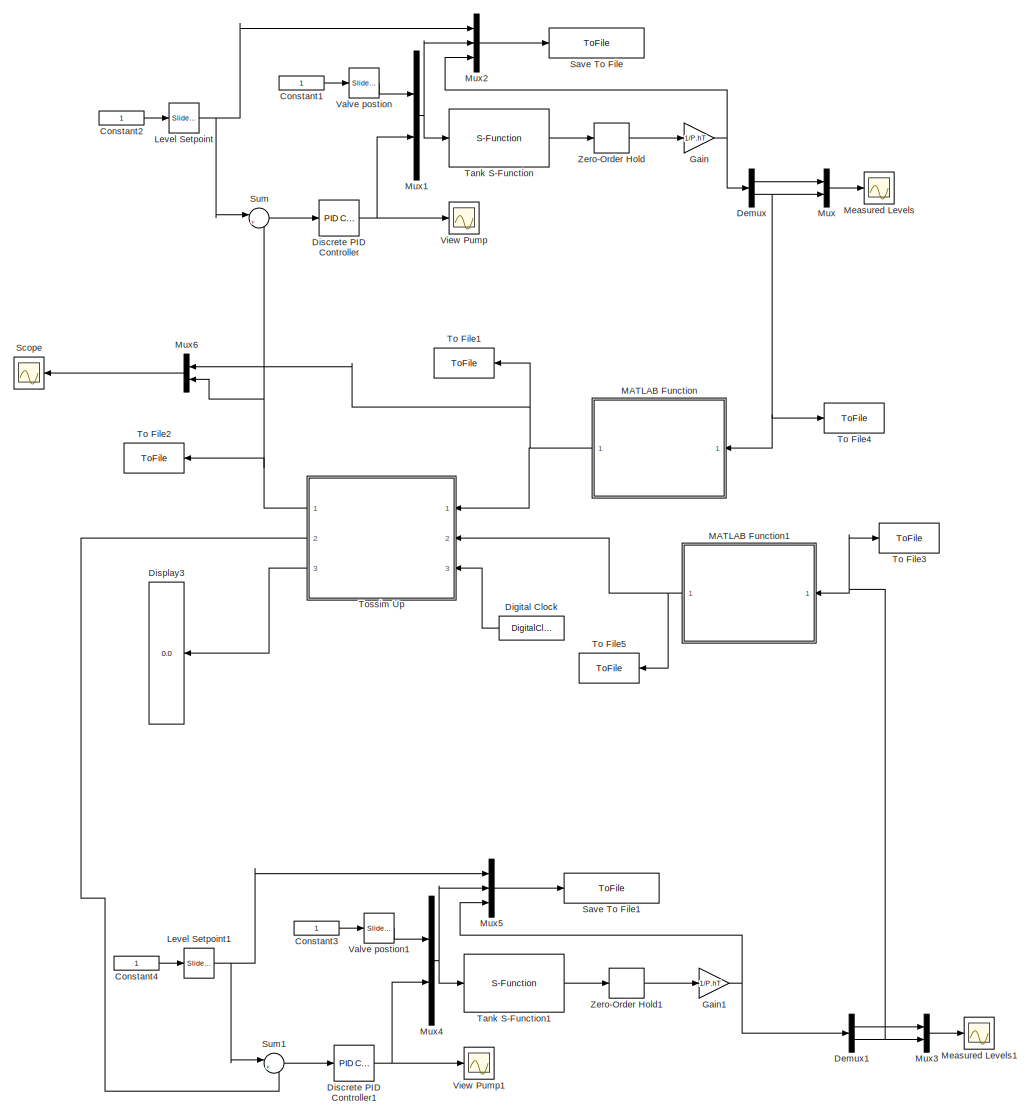
[diagram: root canvas - part 1/3, center side, full height]
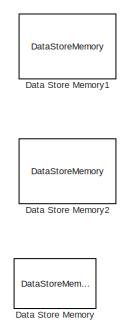
[diagram: root canvas - part 2/3, middle right region]
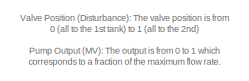
[diagram: root canvas - part 3/3, bottom left region]
MODEL slx_25f17d9f1249
KIND model
CONFIG AbsTol = auto
CONFIG EnableMultiTasking = on
CONFIG FixedStep = auto
CONFIG MaxStep = auto
CONFIG MinStep = auto
CONFIG PreLoadFcn = Initialize
CONFIG RelTol = 1e-3
CONFIG SampleTimeConstraint = Unconstrained
CONFIG Solver = ode45
CONFIG SolverName = ode45
CONFIG StartTime = 0.0
CONFIG StopFcn = Plot_and_save
CONFIG StopTime = 10000
BLOCK [Constant] Constant1
BLOCK [Constant] Constant2
BLOCK [Constant] Constant3
BLOCK [Constant] Constant4
BLOCK [DataStoreMemory] Data Store Memory
  DataStoreName = ydelay_global
  InitialValue = [1; 1; 1; 1; 1; 1; 1; 1; 1; 1; 1; 1; 1; 1; 1]
  OutDataTypeStr = uint32
  ReadBeforeWriteMsg = warning
  ShowAdditionalParam = off
  SignalType = real
  WriteAfterReadMsg = warning
  WriteAfterWriteMsg = warning
BLOCK [DataStoreMemory] Data Store Memory1
  DataStoreName = threshold1
  InitialValue = th1_initial
  OutDataTypeStr = double
  ReadBeforeWriteMsg = warning
  ShowAdditionalParam = off
  SignalType = real
  WriteAfterReadMsg = warning
  WriteAfterWriteMsg = warning
BLOCK [DataStoreMemory] Data Store Memory2
  DataStoreName = threshold2
  InitialValue = th2_initial
  OutDataTypeStr = double
  ReadBeforeWriteMsg = warning
  ShowAdditionalParam = off
  SignalType = real
  WriteAfterReadMsg = warning
  WriteAfterWriteMsg = warning
BLOCK [Demux] Demux
  DisplayOption = bar
  Outputs = 2
  Ports = [1, 2]
BLOCK [Demux] Demux1
  DisplayOption = bar
  Outputs = 2
  Ports = [1, 2]
BLOCK [DigitalClock] Digital Clock
  SampleTime = delta_t
BLOCK [Reference] Discrete PID Controller  REF=simulink/Continuous/PID Controller
  Ports = [1, 1]
  SourceBlock = simulink/Continuous/PID Controller
  SourceProductBaseCode = SL
  SourceProductName = Simulink
  SourceType = PID 1dof
BLOCK [Reference] Discrete PID Controller1  REF=simulink/Continuous/PID Controller
  Ports = [1, 1]
  SourceBlock = simulink/Continuous/PID Controller
  SourceProductBaseCode = SL
  SourceProductName = Simulink
  SourceType = PID 1dof
BLOCK [Display] Display3
  Decimation = 1
  Ports = [1]
BLOCK [Gain] Gain
  Gain = 1/P.hT
  OutDataTypeStr = Inherit: Inherit via internal rule
  ParamDataTypeStr = Inherit: Inherit via internal rule
  SaturateOnIntegerOverflow = off
BLOCK [Gain] Gain1
  Gain = 1/P.hT
  OutDataTypeStr = Inherit: Inherit via internal rule
  ParamDataTypeStr = Inherit: Inherit via internal rule
  SaturateOnIntegerOverflow = off
BLOCK [Reference] Level Setpoint  REF=simulink/Math
Operations/Slider
Gain
  Ports = [1, 1]
  SourceBlock = simulink/Math\nOperations/Slider\nGain
  SourceProductBaseCode = SL
  SourceProductName = Simulink
  SourceType = Slider Gain
BLOCK [Reference] Level Setpoint1  REF=simulink/Math
Operations/Slider
Gain
  Ports = [1, 1]
  SourceBlock = simulink/Math\nOperations/Slider\nGain
  SourceProductBaseCode = SL
  SourceProductName = Simulink
  SourceType = Slider Gain
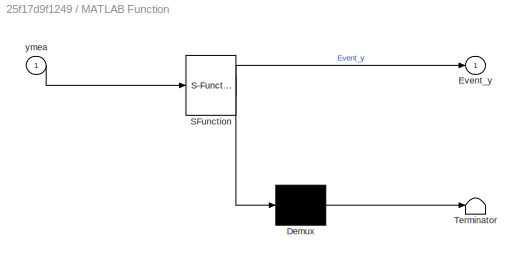
BLOCK [SubSystem] MATLAB Function
  ErrorFcn = Stateflow.Translate.translate
  PermitHierarchicalResolution = ExplicitOnly
  Ports = [1, 1]
  RequestExecContextInheritance = off
  SFBlockType = MATLAB Function
  TreatAsAtomicUnit = on
BLOCK [Demux] MATLAB Function/ Demux 
  Outputs = 1
  Ports = [1, 1]
BLOCK [S-Function] MATLAB Function/ SFunction 
  EnableBusSupport = on
  FunctionName = sf_sfun
  PortCounts = [1 2]
  Ports = [1, 2]
  SFcnIsStateOwnerBlock = off
  SFunctionDeploymentMode = off
  Tag = Stateflow S-Function Gravity_Drained_Tanks_Test_WCPSv3 2
BLOCK [Terminator] MATLAB Function/ Terminator 
BLOCK [Outport] MATLAB Function/Event_y
  IconDisplay = Port number
BLOCK [Inport] MATLAB Function/ymea
  IconDisplay = Port number
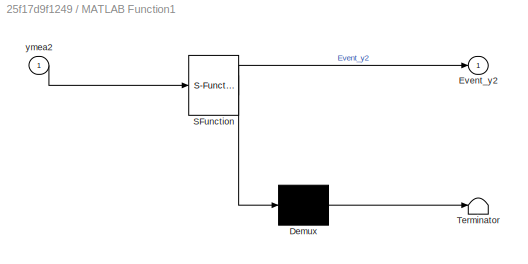
BLOCK [SubSystem] MATLAB Function1
  ErrorFcn = Stateflow.Translate.translate
  PermitHierarchicalResolution = ExplicitOnly
  Ports = [1, 1]
  RequestExecContextInheritance = off
  SFBlockType = MATLAB Function
  TreatAsAtomicUnit = on
BLOCK [Demux] MATLAB Function1/ Demux 
  Outputs = 1
  Ports = [1, 1]
BLOCK [S-Function] MATLAB Function1/ SFunction 
  EnableBusSupport = on
  FunctionName = sf_sfun
  PortCounts = [1 2]
  Ports = [1, 2]
  SFcnIsStateOwnerBlock = off
  SFunctionDeploymentMode = off
  Tag = Stateflow S-Function Gravity_Drained_Tanks_Test_WCPSv3 3
BLOCK [Terminator] MATLAB Function1/ Terminator 
BLOCK [Outport] MATLAB Function1/Event_y2
  IconDisplay = Port number
BLOCK [Inport] MATLAB Function1/ymea2
  IconDisplay = Port number
BLOCK [Scope] Measured Levels
  Floating = off
  NumInputPorts = 1
  Ports = [1]
  ScopeSpecificationString = Simulink.scopes.TimeScopeBlockCfg('CurrentConfiguration', extmgr.ConfigurationSet(extmgr.Configuration('Core','General UI',true),extmgr.Configuration('Core','Source UI',true),extmgr.Configuration('Sources','WiredSimulink',true,'DataLoggingVariableName','ScopeData1','DataLoggingSaveFormat','StructureWithTime','DataLoggingLimitDataPoints',true,'DataLoggingDecimation','1','DataLoggingDecimateData',tr...<+1760ch>
BLOCK [Scope] Measured Levels1
  Floating = off
  NumInputPorts = 1
  Ports = [1]
  ScopeSpecificationString = Simulink.scopes.TimeScopeBlockCfg('CurrentConfiguration', extmgr.ConfigurationSet(extmgr.Configuration('Core','General UI',true),extmgr.Configuration('Core','Source UI',true),extmgr.Configuration('Sources','WiredSimulink',true,'DataLoggingVariableName','ScopeData1','DataLoggingSaveFormat','StructureWithTime','DataLoggingLimitDataPoints',true,'DataLoggingDecimation','1','DataLoggingDecimateData',tr...<+1759ch>
BLOCK [Mux] Mux
  DisplayOption = bar
  Inputs = 2
  Ports = [2, 1]
BLOCK [Mux] Mux1
  DisplayOption = bar
  Inputs = 2
  Ports = [2, 1]
BLOCK [Mux] Mux2
  DisplayOption = bar
  Inputs = 3
  Ports = [3, 1]
BLOCK [Mux] Mux3
  DisplayOption = bar
  Inputs = 2
  Ports = [2, 1]
BLOCK [Mux] Mux4
  DisplayOption = bar
  Inputs = 2
  Ports = [2, 1]
BLOCK [Mux] Mux5
  DisplayOption = bar
  Inputs = 3
  Ports = [3, 1]
BLOCK [Mux] Mux6
  DisplayOption = bar
  Inputs = 2
  Ports = [2, 1]
BLOCK [ToFile] Save To File
  Filename = data_manual.mat
  MatrixName = tanks
  Ports = [1]
  SampleTime = 1
BLOCK [ToFile] Save To File1
  Filename = data_manual2.mat
  MatrixName = tanks2
  Ports = [1]
  SampleTime = 1
BLOCK [Scope] Scope
  Floating = off
  NumInputPorts = 1
  Ports = [1]
  ScopeSpecificationString = Simulink.scopes.TimeScopeBlockCfg('CurrentConfiguration', extmgr.ConfigurationSet(extmgr.Configuration('Core','General UI',true),extmgr.Configuration('Core','Source UI',true),extmgr.Configuration('Sources','WiredSimulink',true,'DataLoggingVariableName','ScopeData1'),extmgr.Configuration('Visuals','Time Domain',true,'SerializedDisplays',{struct('MinYLimReal','-0.12026','MaxYLimReal','1.08235','YLab...<+1447ch>
BLOCK [Sum] Sum
  IconShape = round
  InputSameDT = off
  Inputs = |+-
  OutDataTypeStr = Inherit: Inherit via internal rule
  Ports = [2, 1]
  SaturateOnIntegerOverflow = off
BLOCK [Sum] Sum1
  IconShape = round
  InputSameDT = off
  Inputs = |+-
  OutDataTypeStr = Inherit: Inherit via internal rule
  Ports = [2, 1]
  SaturateOnIntegerOverflow = off
BLOCK [S-Function] Tank S-Function
  EnableBusSupport = off
  FunctionName = tank_dynamics
  Parameters = P
  Ports = [1, 1]
  SFcnIsStateOwnerBlock = off
  SFunctionDeploymentMode = off
BLOCK [S-Function] Tank S-Function1
  EnableBusSupport = off
  FunctionName = tank_dynamics_v2
  Parameters = P2
  Ports = [1, 1]
  SFcnIsStateOwnerBlock = off
  SFunctionDeploymentMode = off
BLOCK [ToFile] To File1
  Filename = Event_ymea1
  MatrixName = Event_ymea1
  Ports = [1]
  SampleTime = 1
BLOCK [ToFile] To File2
  Filename = ymea1
  MatrixName = ymea1
  Ports = [1]
  SampleTime = 1
BLOCK [ToFile] To File3
  Filename = ymea2
  MatrixName = ymea2
  Ports = [1]
  SampleTime = 1
BLOCK [ToFile] To File4
  Filename = ymea
  MatrixName = ymea
  Ports = [1]
  SampleTime = 1
BLOCK [ToFile] To File5
  Filename = Event_ymea2
  MatrixName = Event_ymea2
  Ports = [1]
  SampleTime = 1
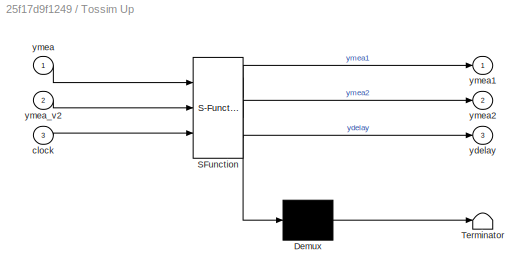
BLOCK [SubSystem] Tossim Up
  ErrorFcn = Stateflow.Translate.translate
  PermitHierarchicalResolution = ExplicitOnly
  Ports = [3, 3]
  RequestExecContextInheritance = off
  SFBlockType = MATLAB Function
  TreatAsAtomicUnit = on
BLOCK [Demux] Tossim Up/ Demux 
  Outputs = 1
  Ports = [1, 1]
BLOCK [S-Function] Tossim Up/ SFunction 
  EnableBusSupport = on
  FunctionName = sf_sfun
  PortCounts = [3 4]
  Ports = [3, 4]
  SFcnIsStateOwnerBlock = off
  SFunctionDeploymentMode = off
  Tag = Stateflow S-Function Gravity_Drained_Tanks_Test_WCPSv3 1
BLOCK [Terminator] Tossim Up/ Terminator 
BLOCK [Inport] Tossim Up/clock
  IconDisplay = Port number
  Port = 3
BLOCK [Outport] Tossim Up/ydelay
  IconDisplay = Port number
  Port = 3
BLOCK [Inport] Tossim Up/ymea
  IconDisplay = Port number
BLOCK [Outport] Tossim Up/ymea1
  IconDisplay = Port number
BLOCK [Outport] Tossim Up/ymea2
  IconDisplay = Port number
  Port = 2
BLOCK [Inport] Tossim Up/ymea_v2
  IconDisplay = Port number
  Port = 2
BLOCK [Reference] Valve postion  REF=simulink/Math
Operations/Slider
Gain
  Ports = [1, 1]
  SourceBlock = simulink/Math\nOperations/Slider\nGain
  SourceProductBaseCode = SL
  SourceProductName = Simulink
  SourceType = Slider Gain
BLOCK [Reference] Valve postion1  REF=simulink/Math
Operations/Slider
Gain
  Ports = [1, 1]
  SourceBlock = simulink/Math\nOperations/Slider\nGain
  SourceProductBaseCode = SL
  SourceProductName = Simulink
  SourceType = Slider Gain
BLOCK [Scope] View Pump
  Floating = off
  NumInputPorts = 1
  Ports = [1]
  ScopeSpecificationString = Simulink.scopes.TimeScopeBlockCfg('CurrentConfiguration', extmgr.ConfigurationSet(extmgr.Configuration('Core','General UI',true),extmgr.Configuration('Core','Source UI',true),extmgr.Configuration('Sources','WiredSimulink',true,'DataLoggingSaveFormat','StructureWithTime','DataLoggingLimitDataPoints',true,'DataLoggingDecimation','1','DataLoggingDecimateData',true),extmgr.Configuration('Visuals','Tim...<+1672ch>
BLOCK [Scope] View Pump1
  Floating = off
  NumInputPorts = 1
  Ports = [1]
  ScopeSpecificationString = Simulink.scopes.TimeScopeBlockCfg('CurrentConfiguration', extmgr.ConfigurationSet(extmgr.Configuration('Core','General UI',true),extmgr.Configuration('Core','Source UI',true),extmgr.Configuration('Sources','WiredSimulink',true,'DataLoggingSaveFormat','StructureWithTime','DataLoggingLimitDataPoints',true,'DataLoggingDecimation','1','DataLoggingDecimateData',true,'DataLoggingVariableName','ScopeData...<+1711ch>
BLOCK [ZeroOrderHold] Zero-Order Hold
  SampleTime = delta_t
BLOCK [ZeroOrderHold] Zero-Order Hold1
  SampleTime = delta_t
ANNOTATION (root): Valve Position (Disturbance): The valve position is from 0 (all to the 1st tank) to 1 (all to the 2nd) Pump Output (MV): The output is from 0 to 1 which corresponds to a fraction of the maximum flow rate. Change blue box values (slider).
LINE Constant1:1 -> Valve postion:1
LINE Constant2:1 -> Level Setpoint:1
LINE Constant3:1 -> Valve postion1:1
LINE Constant4:1 -> Level Setpoint1:1
LINE Demux1:1 -> Mux3:1
NET Demux1:2 -> MATLAB Function1:1, Mux3:2, To File3:1
LINE Demux:1 -> Mux:1
NET Demux:2 -> MATLAB Function:1, Mux:2, To File4:1
LINE Digital Clock:1 -> Tossim Up:3
NET Discrete PID Controller1:1 -> Mux4:2, View Pump1:1
NET Discrete PID Controller:1 -> Mux1:2, View Pump:1
NET Gain1:1 -> Demux1:1, Mux5:3
NET Gain:1 -> Demux:1, Mux2:3
NET Level Setpoint1:1 -> Mux5:1, Sum1:1
NET Level Setpoint:1 -> Mux2:1, Sum:1
NET MATLAB Function1:1 -> To File5:1, Tossim Up:2
NET MATLAB Function:1 -> Mux6:1, To File1:1, Tossim Up:1
NET Mux1:1 -> Mux2:2, Tank S-Function:1
LINE Mux2:1 -> Save To File:1
LINE Mux3:1 -> Measured Levels1:1
NET Mux4:1 -> Mux5:2, Tank S-Function1:1
LINE Mux5:1 -> Save To File1:1
LINE Mux6:1 -> Scope:1
LINE Mux:1 -> Measured Levels:1
LINE Sum1:1 -> Discrete PID Controller1:1
LINE Sum:1 -> Discrete PID Controller:1
LINE Tank S-Function1:1 -> Zero-Order Hold1:1
LINE Tank S-Function:1 -> Zero-Order Hold:1
NET Tossim Up:1 -> Mux6:2, Sum:2, To File2:1
LINE Tossim Up:2 -> Sum1:2
LINE Tossim Up:3 -> Display3:1
LINE Valve postion1:1 -> Mux4:1
LINE Valve postion:1 -> Mux1:1
LINE Zero-Order Hold1:1 -> Gain1:1
LINE Zero-Order Hold:1 -> Gain:1
note: NET lines group one-source signal fan-out (src -> all destinations, sorted); 1:1 wires keep LINE
CHART Tossim Up states=1 transitions=1
  STATE_LABEL 'eML_blk_kernel()'
  STATE_LABEL 'SCRIPT:\nfunction [ymea1,ymea2, ydelay]  = Tossim_block(ymea, ymea_v2, clock)\n% Inputs:\n% ymea: measurement from structure\n% Outputs:\n% ymea1: measurement output\n% ydelay: delay traces\npersistent delay1 past_ymea csi_ydelay past_ymea_v2% delay trace\npersistent new_trans_ymea new_trans_ymea_v2\npersistent i Task_period % count \nglobal ydelay_global \n\n\n% allow these matlab functions to be used in Embe...<+1733ch>'
CHART MATLAB Function states=1 transitions=1
  STATE_LABEL 'eML_blk_kernel()'
  STATE_LABEL 'SCRIPT:\nfunction Event_y = event_trigger(ymea)\n\npersistent previous_ymea\npersistent i %count\nglobal threshold1\n\n\nif isempty(i)\n    i = 0;\n    previous_ymea = 0;\nend\n\ncompare = abs(ymea - previous_ymea);\nif (compare) >= threshold1\n    ans = ymea;\n    previous_ymea = ymea;\nelse\n    ans = previous_ymea;\nend\n\ni = i + 1;\nEvent_y = ans;\n'
CHART MATLAB Function1 states=1 transitions=1
  STATE_LABEL 'eML_blk_kernel()'
  STATE_LABEL 'SCRIPT:\nfunction Event_y2 = event_trigger2(ymea2)\n\npersistent previous_ymea\npersistent i %count\nglobal threshold2\n\n\nif isempty(i)\n    i = 0;\n    previous_ymea = 0;\nend\n\ncompare = abs(ymea2 - previous_ymea);\nif (compare) >= threshold2\n    ans = ymea2;\n    previous_ymea = ymea2;\nelse\n    ans = previous_ymea;\nend\n\ni = i + 1;\nEvent_y2 = ans;\n'
